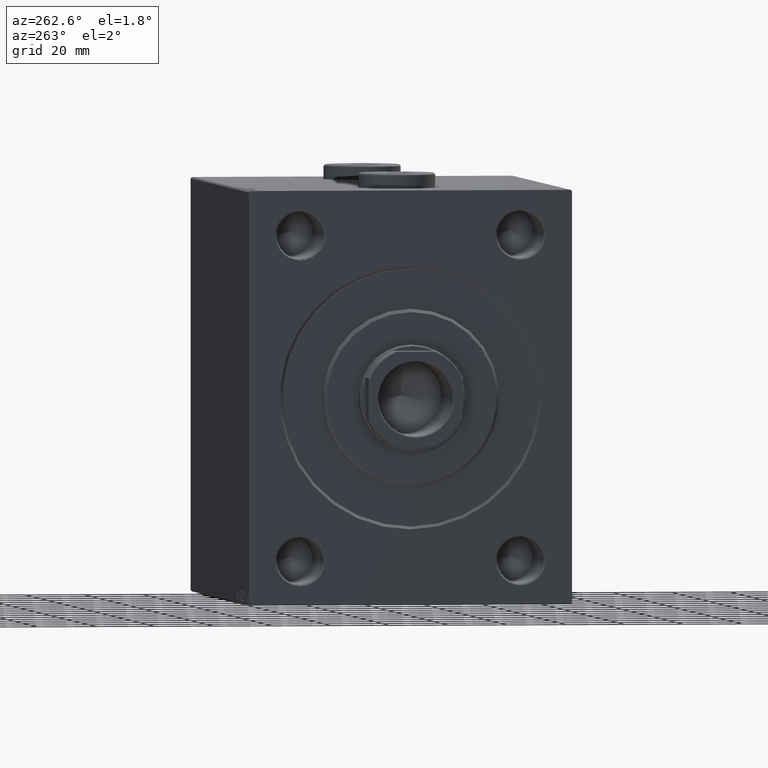
[diagram: clean part render]
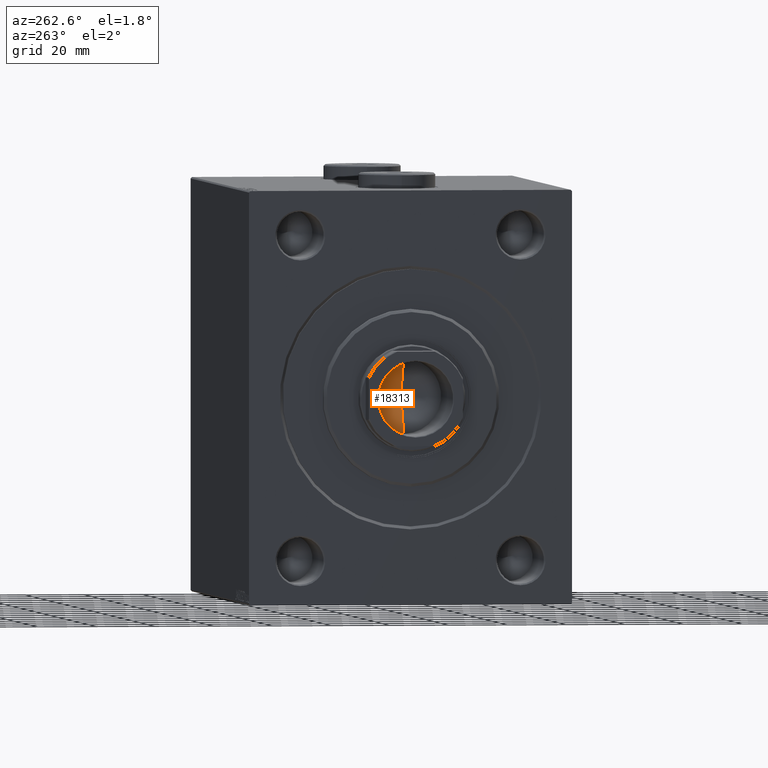
[diagram: same view with one face highlighted and labeled with its STEP entity id]
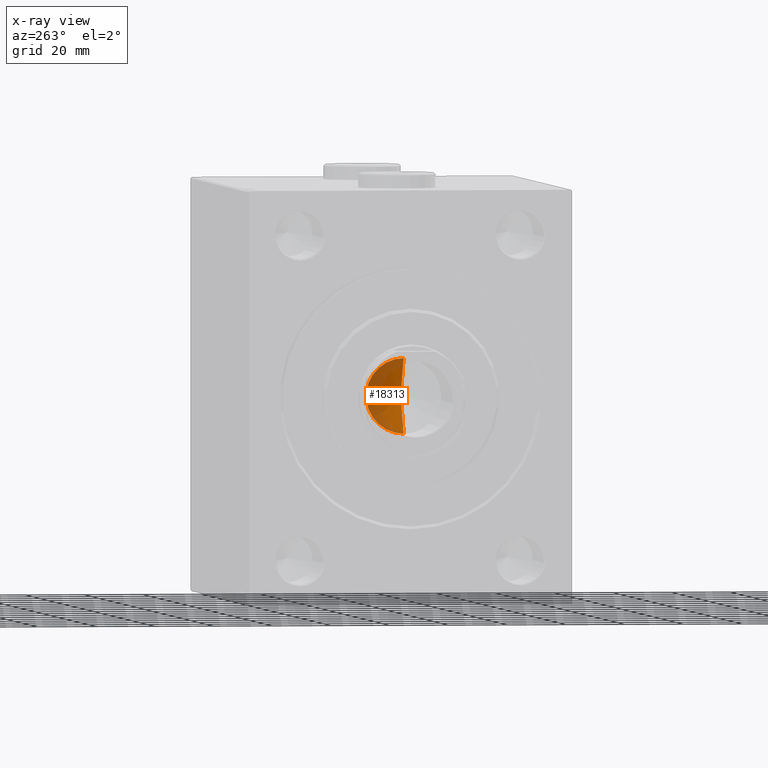
[diagram: x-ray of the same camera — body ghosted, the highlighted face saturated]
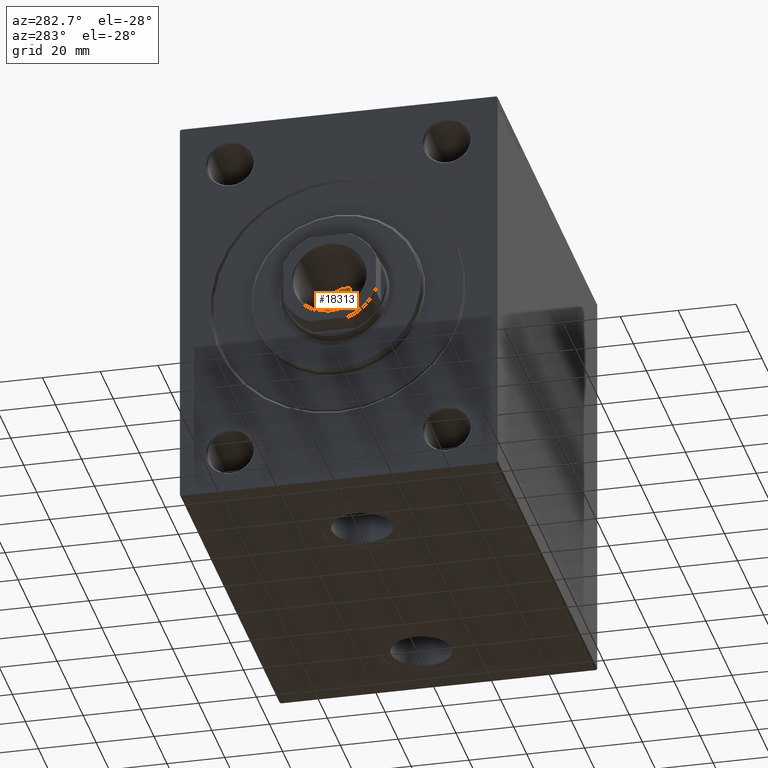
[diagram: same view with one face highlighted and labeled with its STEP entity id]
A machine part, auxiliary view. The second image highlights one B-rep face of the part: STEP entity #18313.
The next image is the same camera in x-ray: the body ghosted, the highlighted face saturated — about 42% of this face is hidden behind the body in this view.
A second angle (auxiliary view) of the same face is appended — the face is thin or edge-on in the first view.
In plain terms, the highlighted conical surface has half-angle 59 deg.
Its self-contained STEP definition (entity closure, byte-faithful):
#1085 = DIRECTION ( 'NONE',  ( 0.8571673007021118895, 0.000000000000000000, 0.5150380749100549327 ) ) ;
#3609 = CIRCLE ( 'NONE', #29435, 12.74999999999999467 ) ;
#4313 = VERTEX_POINT ( 'NONE', #10508 ) ;
#5594 = ORIENTED_EDGE ( 'NONE', *, *, #26452, .T. ) ;
#7241 = FACE_OUTER_BOUND ( 'NONE', #40114, .T. ) ;
#8475 = LINE ( 'NONE', #22556, #43571 ) ;
#10508 = CARTESIAN_POINT ( 'NONE',  ( 12.74999999999999467, 0.000000000000000000, 114.0000000000000142 ) ) ;
#10672 = DIRECTION ( 'NONE',  ( -0.000000000000000000, -0.000000000000000000, 1.000000000000000000 ) ) ;
#11355 = DIRECTION ( 'NONE',  ( 1.000000000000000000, 0.000000000000000000, 0.000000000000000000 ) ) ;
#13133 = ORIENTED_EDGE ( 'NONE', *, *, #22438, .F. ) ;
#16454 = VERTEX_POINT ( 'NONE', #34978 ) ;
#18313 = ADVANCED_FACE ( 'NONE', ( #7241 ), #44932, .F. ) ;
#21829 = CARTESIAN_POINT ( 'NONE',  ( -1.026246296720136938E-14, 0.000000000000000000, 106.3390271073986213 ) ) ;
#22438 = EDGE_CURVE ( 'NONE', #24069, #16454, #30026, .T. ) ;
#22556 = CARTESIAN_POINT ( 'NONE',  ( 12.74999999999999467, 0.000000000000000000, 114.0000000000000142 ) ) ;
#24069 = VERTEX_POINT ( 'NONE', #21829 ) ;
#25015 = AXIS2_PLACEMENT_3D ( 'NONE', #28498, #32191, #25711 ) ;
#25711 = DIRECTION ( 'NONE',  ( 1.000000000000000000, 0.000000000000000000, 0.000000000000000000 ) ) ;
#26452 = EDGE_CURVE ( 'NONE', #4313, #16454, #3609, .T. ) ;
#27939 = ORIENTED_EDGE ( 'NONE', *, *, #30523, .T. ) ;
#28498 = CARTESIAN_POINT ( 'NONE',  ( 0.000000000000000000, 0.000000000000000000, 114.0000000000000142 ) ) ;
#29435 = AXIS2_PLACEMENT_3D ( 'NONE', #43017, #10672, #11355 ) ;
#30026 = LINE ( 'NONE', #44127, #37716 ) ;
#30523 = EDGE_CURVE ( 'NONE', #24069, #4313, #8475, .T. ) ;
#32191 = DIRECTION ( 'NONE',  ( -0.000000000000000000, -0.000000000000000000, 1.000000000000000000 ) ) ;
#34978 = CARTESIAN_POINT ( 'NONE',  ( -12.74999999999999467, 1.561424668912874519E-15, 114.0000000000000142 ) ) ;
#37716 = VECTOR ( 'NONE', #44442, 1000.000000000000000 ) ;
#40114 = EDGE_LOOP ( 'NONE', ( #13133, #27939, #5594 ) ) ;
#43017 = CARTESIAN_POINT ( 'NONE',  ( 0.000000000000000000, 0.000000000000000000, 114.0000000000000142 ) ) ;
#43571 = VECTOR ( 'NONE', #1085, 1000.000000000000000 ) ;
#44127 = CARTESIAN_POINT ( 'NONE',  ( -12.74999999999999467, 1.561424668912874519E-15, 114.0000000000000142 ) ) ;
#44442 = DIRECTION ( 'NONE',  ( -0.8571673007021118895, 1.049727191138618079E-16, 0.5150380749100549327 ) ) ;
#44932 = CONICAL_SURFACE ( 'NONE', #25015, 12.74999999999999467, 1.029744258676653645 ) ;